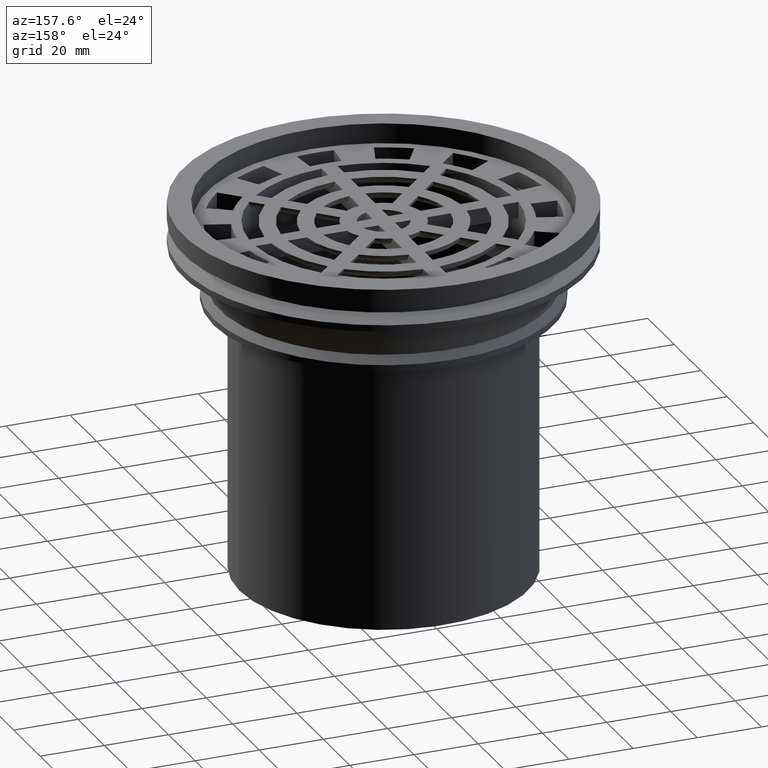
[diagram: clean part render]
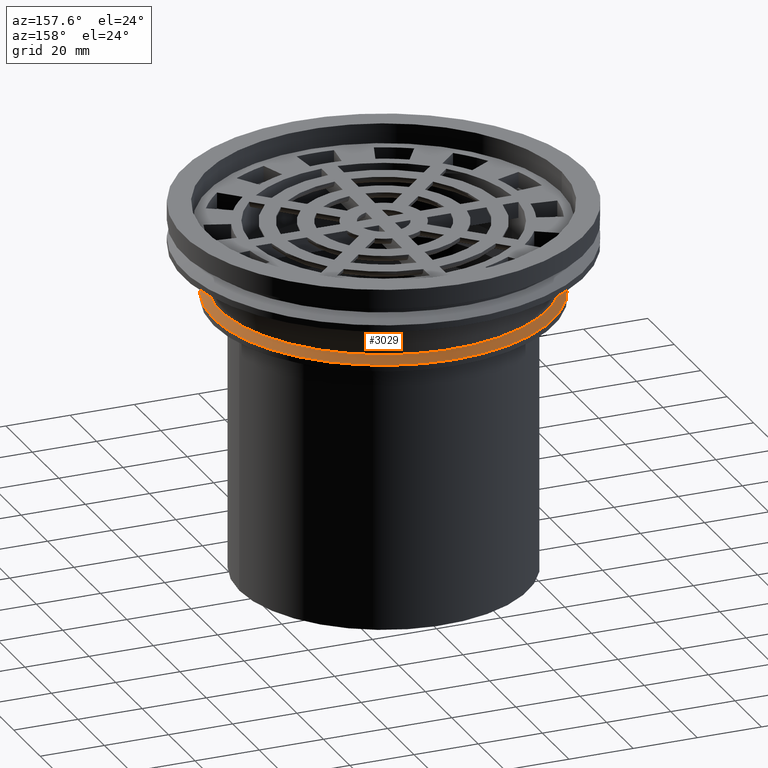
[diagram: same view with one face highlighted and labeled with its STEP entity id]
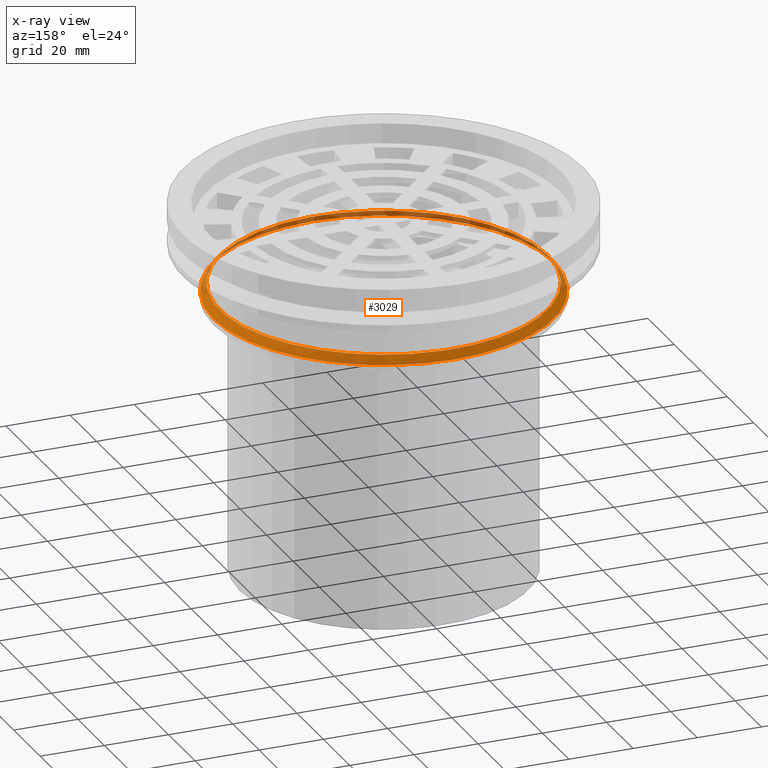
[diagram: x-ray of the same camera — body ghosted, the highlighted face saturated]
A machine part, auxiliary view. The second image highlights one B-rep face of the part: STEP entity #3029.
The next image is the same camera in x-ray: the body ghosted, the highlighted face saturated — about 25% of this face is hidden behind the body in this view.
In plain terms, the highlighted conical surface has half-angle 38.148 deg.
Its self-contained STEP definition (entity closure, byte-faithful):
#23=CONICAL_SURFACE('',#3374,52.998,0.665807706788415);
#1468=ORIENTED_EDGE('',*,*,#1914,.T.);
#1469=ORIENTED_EDGE('',*,*,#1913,.F.);
#1913=EDGE_CURVE('',#2214,#2214,#2383,.T.);
#1914=EDGE_CURVE('',#2215,#2215,#2384,.T.);
#2214=VERTEX_POINT('',#5462);
#2215=VERTEX_POINT('',#5465);
#2383=CIRCLE('',#3373,52.998);
#2384=CIRCLE('',#3375,51.065);
#2605=EDGE_LOOP('',(#1468));
#2606=EDGE_LOOP('',(#1469));
#2833=FACE_BOUND('',#2605,.T.);
#2834=FACE_BOUND('',#2606,.T.);
#3029=ADVANCED_FACE('',(#2833,#2834),#23,.T.);
#3373=AXIS2_PLACEMENT_3D('',#5461,#4192,#4193);
#3374=AXIS2_PLACEMENT_3D('',#5463,#4194,#4195);
#3375=AXIS2_PLACEMENT_3D('',#5464,#4196,#4197);
#4192=DIRECTION('',(0.,0.,-1.));
#4193=DIRECTION('',(-1.,0.,0.));
#4194=DIRECTION('',(0.,0.,-1.));
#4195=DIRECTION('',(-1.,0.,0.));
#4196=DIRECTION('',(0.,0.,-1.));
#4197=DIRECTION('',(-1.,0.,0.));
#5461=CARTESIAN_POINT('',(0.,0.,-28.));
#5462=CARTESIAN_POINT('',(-52.998,0.,-28.));
#5463=CARTESIAN_POINT('',(0.,0.,-28.));
#5464=CARTESIAN_POINT('',(0.,0.,-25.539));
#5465=CARTESIAN_POINT('',(-51.065,0.,-25.539));